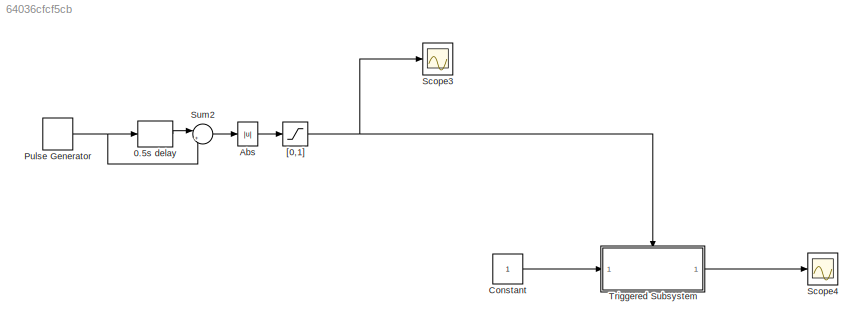
MODEL slx_64036cfcf5cb
KIND model
BLOCK [Delay] 0.5s delay
  DelayLength = DCT_Param.Dog_Clutches.Pulse_Length
  InputPortMap = u0
  Ports = [1, 1]
  SampleTime = 0.01
  UserDataPersistent = on
BLOCK [Abs] Abs
BLOCK [Constant] Constant
BLOCK [DiscretePulseGenerator] Pulse Generator
  Ports = [0, 1]
  PulseType = Time based
  PulseWidth = 50
BLOCK [Scope] Scope3
  DataFormat = StructureWithTime
  Floating = off
  NumInputPorts = 1
  Ports = [1]
  SampleTime = 0
  SaveName = ScopeData3
  ShowLegends = off
BLOCK [Scope] Scope4
  DataFormat = StructureWithTime
  Floating = off
  NumInputPorts = 1
  Ports = [1]
  SampleTime = 0
  ShowLegends = off
BLOCK [Sum] Sum2
  IconShape = round
  Inputs = |+-
  Ports = [2, 1]
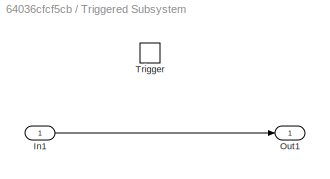
BLOCK [SubSystem] Triggered Subsystem
  Ports = [1, 1, 0, 1]
  RequestExecContextInheritance = off
  TreatAsAtomicUnit = on
BLOCK [Inport] Triggered Subsystem/In1
  IconDisplay = Port number
BLOCK [Outport] Triggered Subsystem/Out1
  IconDisplay = Port number
BLOCK [TriggerPort] Triggered Subsystem/Trigger
  Ports = []
  StatesWhenEnabling = held
BLOCK [Saturate] [0,1]
  InputPortMap = u0
  LowerLimit = 0
  Ports = [1, 1]
  UpperLimit = 1
LINE 0.5s delay:1 -> Sum2:1
LINE Abs:1 -> [0,1]:1
LINE Constant:1 -> Triggered Subsystem:1
NET Pulse Generator:1 -> 0.5s delay:1, Sum2:2
LINE Sum2:1 -> Abs:1
LINE Triggered Subsystem/In1:1 -> Triggered Subsystem/Out1:1
LINE Triggered Subsystem:1 -> Scope4:1
NET [0,1]:1 -> Scope3:1, Triggered Subsystem:trigger
note: NET lines group one-source signal fan-out (src -> all destinations, sorted); 1:1 wires keep LINE
